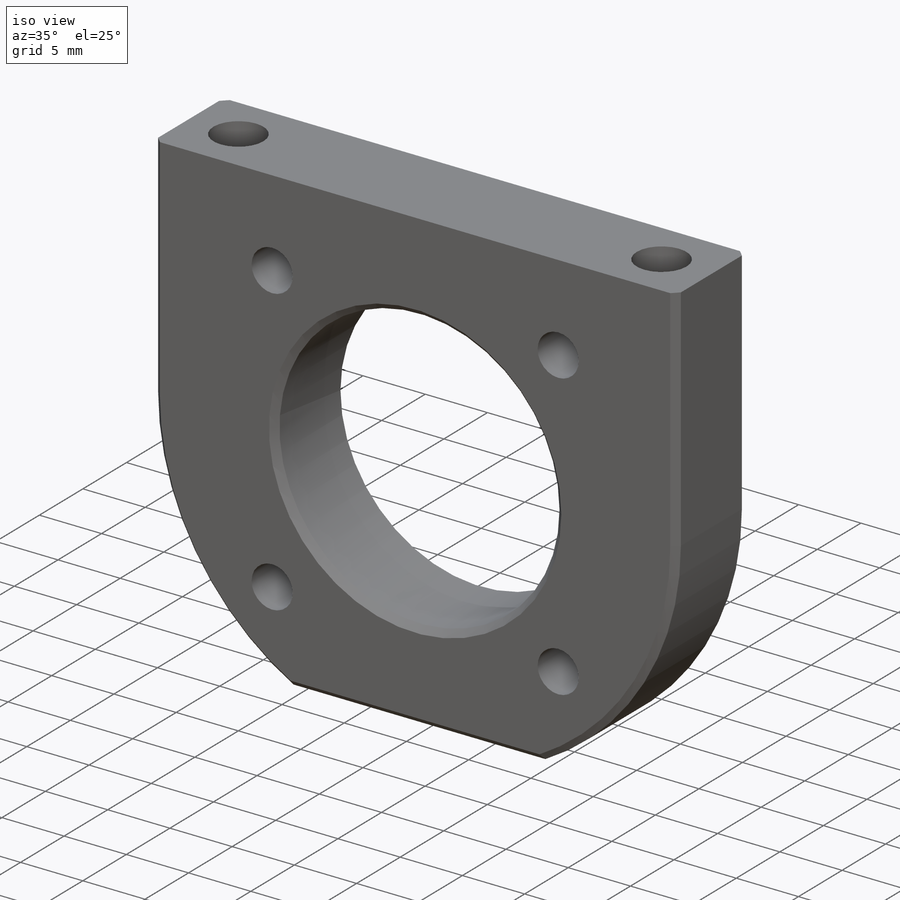
[diagram: iso view]
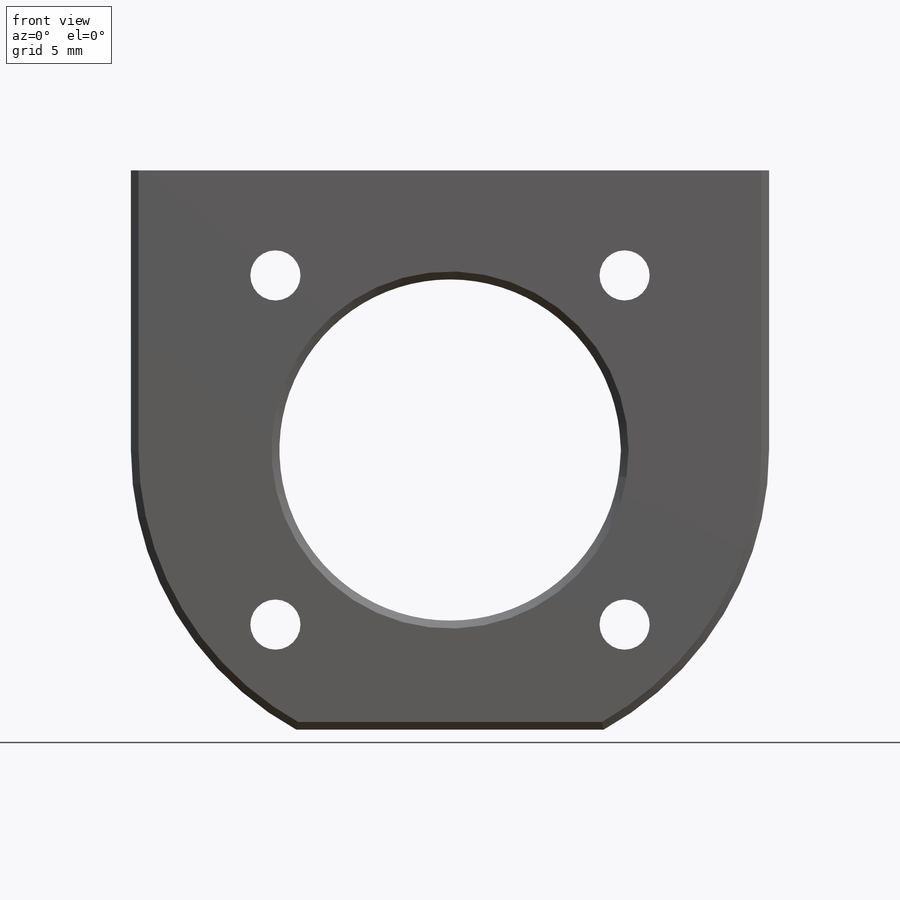
[diagram: front view]
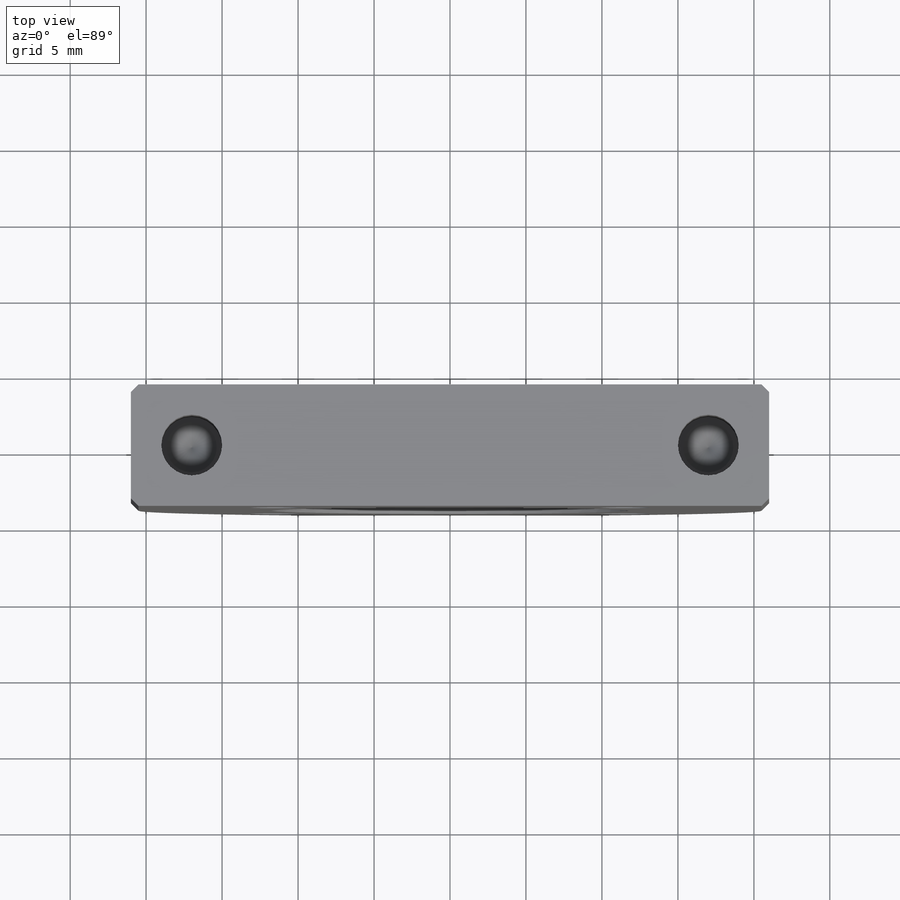
[diagram: top view]
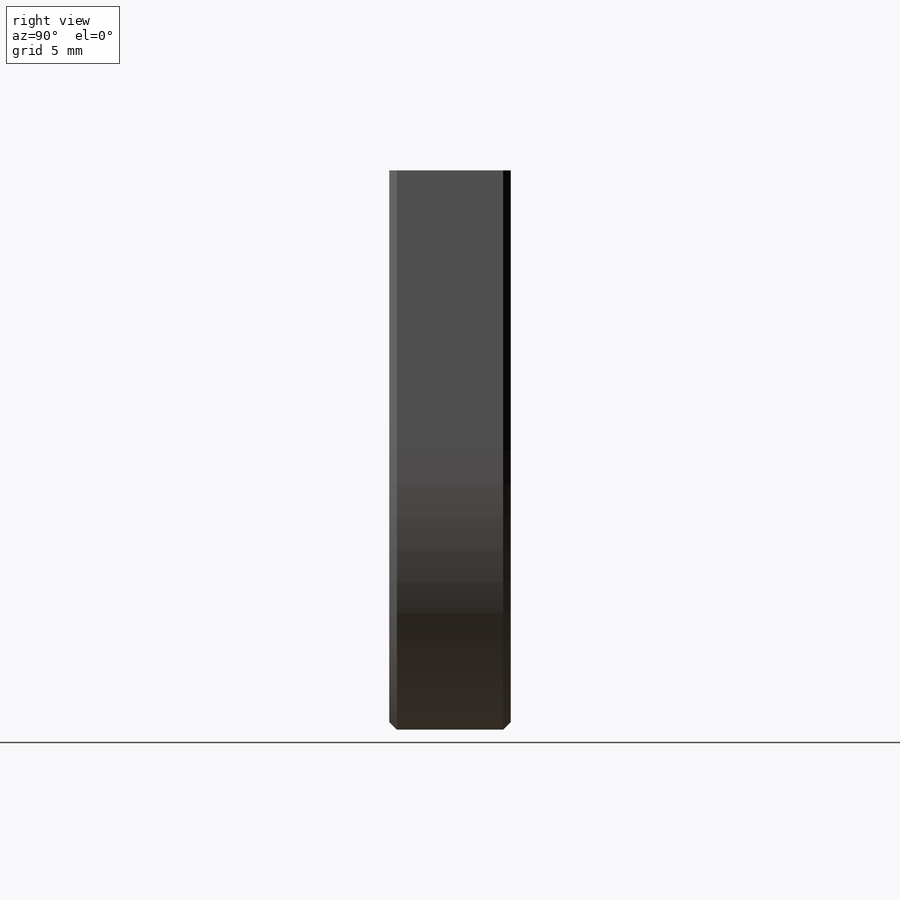
[diagram: right view]
SOLIDWORKS PART (.sldprt)
format: sldprt  version: not decoded by parser v0  size: 321,536 bytes
history: native  units: mm
features: sketch x7, thread x6, cut_extrude x2, hole x2, material x1, extrude x1, chamfer x1 (+12 scaffold rows collapsed)
feature tree (32):
  scaffold x12  (default folders/planes/origin — collapsed)
  material  "Material <not specified>"
  sketch  "Sketch1"  dims[c1.D1=21.0mm c1.D4=21.0mm c1.D6=21.0mm c1.D2=15.0mm c1.D3=15.0mm c2.D4=42.0mm c2.D5=36.8mm c2.D1=21.0mm c2.D2=18.375mm c3.D1=21.0mm c3.D2=21.0mm c3.D3=18.4mm c3.D6=18.375mm]
  extrude  "Boss-Extrude1"  Depth=8mm
  sketch  "Sketch2"  dims[D1=22.5mm]
  cut_extrude  "Cut-Extrude1"  [1 undecoded]
  hole  "M4x0.7 Tapped Hole3"  Diameter=3.3mm Depth=8mm
  sketch  "Sketch12"  dims[D1=32.5mm D2=45.0deg D3=90.0deg]
  sketch  "Sketch11"  dims[hole-wizard template sketch: 60 standard entries collapsed; hole parameters kept: c18.Thru Tap Drill Depth=8.0mm]
  thread  "Hole Thread7"  Diameter=4mm  [1 undecoded]
  thread  "Hole Thread8"  Diameter=4mm  [1 undecoded]
  thread  "Hole Thread9"  Diameter=4mm  [1 undecoded]
  thread  "Hole Thread10"  Diameter=4mm  [1 undecoded]
  hole  "M4x0.7 Tapped Hole1"  [1 undecoded]
  sketch  "Sketch8"  dims[D1=17.0mm D2=17.0mm]
  thread  "Hole Thread1"  Diameter=7.3mm  [1 undecoded]
  thread  "Hole Thread2"  Diameter=7.3mm  [1 undecoded]
  sketch  "Sketch7"  dims[hole-wizard template sketch: 47 standard entries collapsed; hole parameters kept: c15.Tap Drill Depth=8.0mm c15.D3=~14.816244mm c15.Drill Angle=118.0deg]
  sketch  "Sketch6"  dims[c1.D1=4.0mm c1.D2=4.0mm c1.D3=4.0mm c1.D4=4.0mm c2.D3=4.0mm c2.D4=4.0mm c2.D5=34.0mm c2.D6=19.0mm c2.D1=17.0mm c2.D2=17.0mm]
  cut_extrude  "Cut-Extrude3"  Depth=8mm
  chamfer  "Chamfer1"  Distance=0.5mm Angle=45deg
decode coverage: 17 of 19 modeling features carry decoded parameters
note: ~ marks probable driven/reference dimensions
note: 8 parameter values undecoded
note: suppression state not decoded; provenance and decode notes live in map.json
